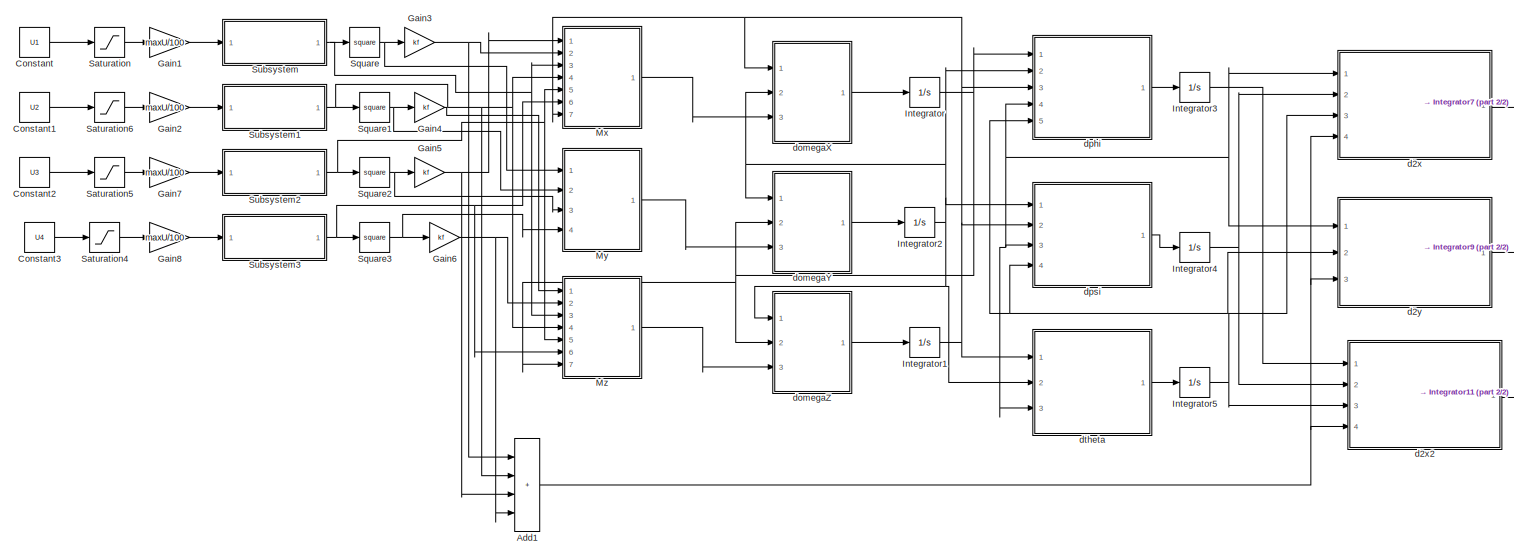
[diagram: root canvas - part 1/2, most of the canvas]
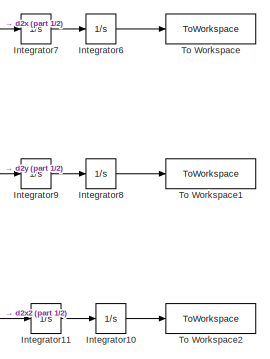
[diagram: root canvas - part 2/2, middle right region]
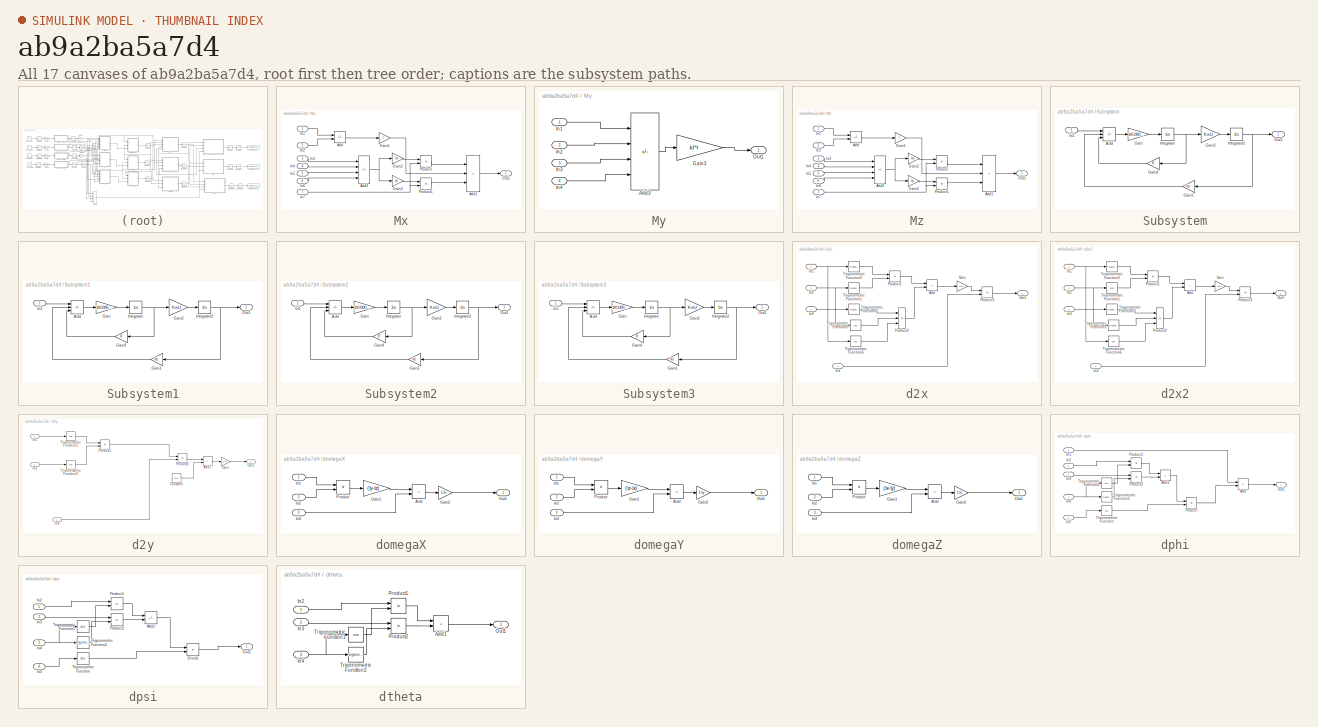
[diagram: thumbnail index - all 17 canvases of the model, root first then tree order]
MODEL slx_ab9a2ba5a7d4
KIND model
CONFIG AbsTol = auto
CONFIG EnableMultiTasking = off
CONFIG FixedStep = auto
CONFIG MaxStep = auto
CONFIG MinStep = auto
CONFIG RelTol = 1e-3
CONFIG SampleTimeConstraint = Unconstrained
CONFIG SolverName = VariableStepAuto
CONFIG StartTime = 0.0
CONFIG StopTime = 5
BLOCK [Sum] Add1
  IconShape = rectangular
  Inputs = ++++
  Ports = [4, 1]
BLOCK [Constant] Constant
  Value = U1
BLOCK [Constant] Constant1
  Value = U2
BLOCK [Constant] Constant2
  Value = U3
BLOCK [Constant] Constant3
  Value = U4
BLOCK [Gain] Gain1
  Gain = maxU/100
BLOCK [Gain] Gain2
  Gain = maxU/100
BLOCK [Gain] Gain3
  Gain = kf
BLOCK [Gain] Gain4
  Gain = kf
BLOCK [Gain] Gain5
  Gain = kf
BLOCK [Gain] Gain6
  Gain = kf
BLOCK [Gain] Gain7
  Gain = maxU/100
BLOCK [Gain] Gain8
  Gain = maxU/100
BLOCK [Integrator] Integrator
  Ports = [1, 1]
BLOCK [Integrator] Integrator1
  Ports = [1, 1]
BLOCK [Integrator] Integrator10
  Ports = [1, 1]
BLOCK [Integrator] Integrator11
  Ports = [1, 1]
BLOCK [Integrator] Integrator2
  Ports = [1, 1]
BLOCK [Integrator] Integrator3
  Ports = [1, 1]
BLOCK [Integrator] Integrator4
  Ports = [1, 1]
BLOCK [Integrator] Integrator5
  Ports = [1, 1]
BLOCK [Integrator] Integrator6
  Ports = [1, 1]
BLOCK [Integrator] Integrator7
  Ports = [1, 1]
BLOCK [Integrator] Integrator8
  Ports = [1, 1]
BLOCK [Integrator] Integrator9
  Ports = [1, 1]
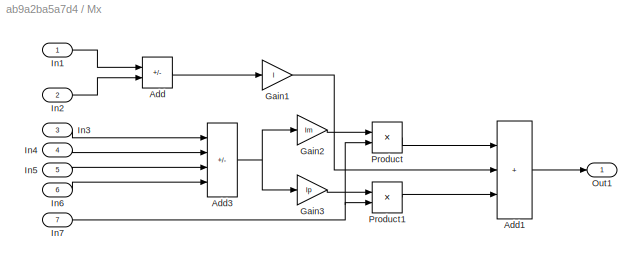
BLOCK [SubSystem] Mx
  Ports = [7, 1]
  RequestExecContextInheritance = off
BLOCK [Sum] Mx/Add
  IconShape = rectangular
  Inputs = +-
  Ports = [2, 1]
BLOCK [Sum] Mx/Add1
  IconShape = rectangular
  Inputs = +++
  Ports = [3, 1]
BLOCK [Sum] Mx/Add3
  IconShape = rectangular
  Inputs = +-+-
  Ports = [4, 1]
BLOCK [Gain] Mx/Gain1
  Gain = l
BLOCK [Gain] Mx/Gain2
  Gain = Im
BLOCK [Gain] Mx/Gain3
  Gain = Ip
BLOCK [Inport] Mx/In1
BLOCK [Inport] Mx/In2
  Port = 2
BLOCK [Inport] Mx/In3
  Port = 3
BLOCK [Inport] Mx/In4
  Port = 4
BLOCK [Inport] Mx/In5
  Port = 5
BLOCK [Inport] Mx/In6
  Port = 6
BLOCK [Inport] Mx/In7
  Port = 7
BLOCK [Outport] Mx/Out1
BLOCK [Product] Mx/Product
  Ports = [2, 1]
BLOCK [Product] Mx/Product1
  Ports = [2, 1]
BLOCK [SubSystem] My
  Ports = [4, 1]
  RequestExecContextInheritance = off
BLOCK [Sum] My/Add3
  IconShape = rectangular
  Inputs = -+-+
  Ports = [4, 1]
BLOCK [Gain] My/Gain3
  Gain = kf*r
BLOCK [Inport] My/In1
BLOCK [Inport] My/In2
  Port = 2
BLOCK [Inport] My/In3
  Port = 3
BLOCK [Inport] My/In4
  Port = 4
BLOCK [Outport] My/Out1
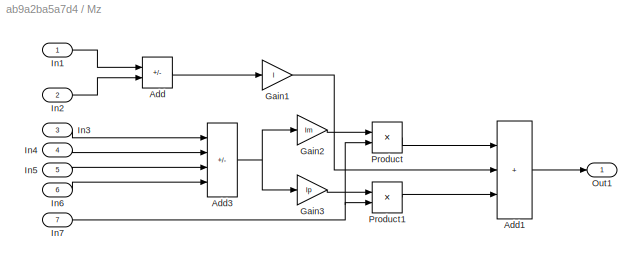
BLOCK [SubSystem] Mz
  Ports = [7, 1]
  RequestExecContextInheritance = off
BLOCK [Sum] Mz/Add
  IconShape = rectangular
  Inputs = +-
  Ports = [2, 1]
BLOCK [Sum] Mz/Add1
  IconShape = rectangular
  Inputs = +++
  Ports = [3, 1]
BLOCK [Sum] Mz/Add3
  IconShape = rectangular
  Inputs = -+-+
  Ports = [4, 1]
BLOCK [Gain] Mz/Gain1
  Gain = l
BLOCK [Gain] Mz/Gain2
  Gain = Im
BLOCK [Gain] Mz/Gain3
  Gain = Ip
BLOCK [Inport] Mz/In1
BLOCK [Inport] Mz/In2
  Port = 2
BLOCK [Inport] Mz/In3
  Port = 3
BLOCK [Inport] Mz/In4
  Port = 4
BLOCK [Inport] Mz/In5
  Port = 5
BLOCK [Inport] Mz/In6
  Port = 6
BLOCK [Inport] Mz/In7
  Port = 7
BLOCK [Outport] Mz/Out1
BLOCK [Product] Mz/Product
  Ports = [2, 1]
BLOCK [Product] Mz/Product1
  Ports = [2, 1]
BLOCK [Saturate] Saturation
  LowerLimit = -100
  UpperLimit = 100
BLOCK [Saturate] Saturation4
  LowerLimit = -100
  UpperLimit = 100
BLOCK [Saturate] Saturation5
  LowerLimit = -100
  UpperLimit = 100
BLOCK [Saturate] Saturation6
  LowerLimit = -100
  UpperLimit = 100
BLOCK [Math] Square
  Operator = square
  Ports = [1, 1]
BLOCK [Math] Square1
  Operator = square
  Ports = [1, 1]
BLOCK [Math] Square2
  Operator = square
  Ports = [1, 1]
BLOCK [Math] Square3
  Operator = square
  Ports = [1, 1]
BLOCK [SubSystem] Subsystem
  Ports = [1, 1]
  RequestExecContextInheritance = off
BLOCK [Sum] Subsystem/Add
  IconShape = rectangular
  Inputs = +--
  Ports = [3, 1]
BLOCK [Gain] Subsystem/Gain
  Gain = 1/0.00047
BLOCK [Gain] Subsystem/Gain1
  Gain = Ke
BLOCK [Gain] Subsystem/Gain2
  Gain = Km/J
BLOCK [Gain] Subsystem/Gain4
  Gain = R
BLOCK [Inport] Subsystem/In1
BLOCK [Integrator] Subsystem/Integrator
  Ports = [1, 1]
BLOCK [Integrator] Subsystem/Integrator2
  Ports = [1, 1]
BLOCK [Outport] Subsystem/Out1
BLOCK [SubSystem] Subsystem1
  Ports = [1, 1]
  RequestExecContextInheritance = off
BLOCK [Sum] Subsystem1/Add
  IconShape = rectangular
  Inputs = +--
  Ports = [3, 1]
BLOCK [Gain] Subsystem1/Gain
  Gain = 1/0.00047
BLOCK [Gain] Subsystem1/Gain1
  Gain = Ke
BLOCK [Gain] Subsystem1/Gain2
  Gain = Km/J
BLOCK [Gain] Subsystem1/Gain4
  Gain = R
BLOCK [Inport] Subsystem1/In1
BLOCK [Integrator] Subsystem1/Integrator
  Ports = [1, 1]
BLOCK [Integrator] Subsystem1/Integrator2
  Ports = [1, 1]
BLOCK [Outport] Subsystem1/Out1
BLOCK [SubSystem] Subsystem2
  Ports = [1, 1]
  RequestExecContextInheritance = off
BLOCK [Sum] Subsystem2/Add
  IconShape = rectangular
  Inputs = +--
  Ports = [3, 1]
BLOCK [Gain] Subsystem2/Gain
  Gain = 1/0.00047
BLOCK [Gain] Subsystem2/Gain1
  Gain = Ke
BLOCK [Gain] Subsystem2/Gain2
  Gain = Km/J
BLOCK [Gain] Subsystem2/Gain4
  Gain = R
BLOCK [Inport] Subsystem2/In1
BLOCK [Integrator] Subsystem2/Integrator
  Ports = [1, 1]
BLOCK [Integrator] Subsystem2/Integrator2
  Ports = [1, 1]
BLOCK [Outport] Subsystem2/Out1
BLOCK [SubSystem] Subsystem3
  Ports = [1, 1]
  RequestExecContextInheritance = off
BLOCK [Sum] Subsystem3/Add
  IconShape = rectangular
  Inputs = +--
  Ports = [3, 1]
BLOCK [Gain] Subsystem3/Gain
  Gain = 1/0.00047
BLOCK [Gain] Subsystem3/Gain1
  Gain = Ke
BLOCK [Gain] Subsystem3/Gain2
  Gain = Km/J
BLOCK [Gain] Subsystem3/Gain4
  Gain = R
BLOCK [Inport] Subsystem3/In1
BLOCK [Integrator] Subsystem3/Integrator
  Ports = [1, 1]
BLOCK [Integrator] Subsystem3/Integrator2
  Ports = [1, 1]
BLOCK [Outport] Subsystem3/Out1
BLOCK [ToWorkspace] To Workspace
  FixptAsFi = on
  MaxDataPoints = inf
  Ports = [1]
  SampleTime = -1
  SaveFormat = Timeseries
  VariableName = x
BLOCK [ToWorkspace] To Workspace1
  FixptAsFi = on
  MaxDataPoints = inf
  Ports = [1]
  SampleTime = -1
  SaveFormat = Timeseries
  VariableName = y
BLOCK [ToWorkspace] To Workspace2
  FixptAsFi = on
  MaxDataPoints = inf
  Ports = [1]
  SampleTime = -1
  SaveFormat = Timeseries
  VariableName = z
BLOCK [SubSystem] d2x
  Ports = [4, 1]
  RequestExecContextInheritance = off
BLOCK [Sum] d2x/Add
  IconShape = rectangular
  Inputs = +-
  Ports = [2, 1]
BLOCK [Gain] d2x/Gain
  Gain = 1/m
BLOCK [Inport] d2x/In1
BLOCK [Inport] d2x/In2
  Port = 2
BLOCK [Inport] d2x/In3
  Port = 3
BLOCK [Inport] d2x/In4
  Port = 4
BLOCK [Outport] d2x/Out1
BLOCK [Product] d2x/Product1
  Ports = [2, 1]
BLOCK [Product] d2x/Product2
  Inputs = 3
  Ports = [3, 1]
BLOCK [Product] d2x/Product3
  Ports = [2, 1]
BLOCK [Trigonometry] d2x/Trigonometric Function1
  Ports = [1, 1]
BLOCK [Trigonometry] d2x/Trigonometric Function2
  Ports = [1, 1]
BLOCK [Trigonometry] d2x/Trigonometric Function3
  Ports = [1, 1]
BLOCK [Trigonometry] d2x/Trigonometric Function5
  Operator = cos
  Ports = [1, 1]
BLOCK [Trigonometry] d2x/Trigonometric Function6
  Operator = cos
  Ports = [1, 1]
BLOCK [SubSystem] d2x2
  Ports = [4, 1]
  RequestExecContextInheritance = off
BLOCK [Sum] d2x2/Add
  IconShape = rectangular
  Ports = [2, 1]
BLOCK [Gain] d2x2/Gain
  Gain = 1/m
BLOCK [Inport] d2x2/In1
BLOCK [Inport] d2x2/In2
  Port = 2
BLOCK [Inport] d2x2/In3
  Port = 3
BLOCK [Inport] d2x2/In4
  Port = 4
BLOCK [Outport] d2x2/Out1
BLOCK [Product] d2x2/Product1
  Ports = [2, 1]
BLOCK [Product] d2x2/Product2
  Inputs = 3
  Ports = [3, 1]
BLOCK [Product] d2x2/Product3
  Ports = [2, 1]
BLOCK [Trigonometry] d2x2/Trigonometric Function1
  Operator = cos
  Ports = [1, 1]
BLOCK [Trigonometry] d2x2/Trigonometric Function2
  Ports = [1, 1]
BLOCK [Trigonometry] d2x2/Trigonometric Function3
  Ports = [1, 1]
BLOCK [Trigonometry] d2x2/Trigonometric Function5
  Ports = [1, 1]
BLOCK [Trigonometry] d2x2/Trigonometric Function6
  Operator = cos
  Ports = [1, 1]
BLOCK [SubSystem] d2y
  Ports = [3, 1]
  RequestExecContextInheritance = off
BLOCK [Sum] d2y/Add1
  IconShape = rectangular
  Inputs = +-
  Ports = [2, 1]
BLOCK [Constant] d2y/Constant
  Value = m*g
BLOCK [Gain] d2y/Gain
  Gain = 1/m
BLOCK [Inport] d2y/In1
BLOCK [Inport] d2y/In3
  Port = 2
BLOCK [Inport] d2y/In4
  Port = 3
BLOCK [Outport] d2y/Out1
BLOCK [Product] d2y/Product1
  Ports = [2, 1]
BLOCK [Product] d2y/Product3
  Ports = [2, 1]
BLOCK [Trigonometry] d2y/Trigonometric Function2
  Operator = cos
  Ports = [1, 1]
BLOCK [Trigonometry] d2y/Trigonometric Function3
  Operator = cos
  Ports = [1, 1]
BLOCK [SubSystem] domegaX
  Ports = [3, 1]
  RequestExecContextInheritance = off
BLOCK [Sum] domegaX/Add
  IconShape = rectangular
  Ports = [2, 1]
BLOCK [Gain] domegaX/Gain1
  Gain = (Iy-Iz)
BLOCK [Gain] domegaX/Gain2
  Gain = 1/Ix
BLOCK [Inport] domegaX/In1
BLOCK [Inport] domegaX/In2
  Port = 2
BLOCK [Inport] domegaX/In3
  Port = 3
BLOCK [Outport] domegaX/Out1
BLOCK [Product] domegaX/Product
  Ports = [2, 1]
BLOCK [SubSystem] domegaY
  Ports = [3, 1]
  RequestExecContextInheritance = off
BLOCK [Sum] domegaY/Add
  IconShape = rectangular
  Ports = [2, 1]
BLOCK [Gain] domegaY/Gain1
  Gain = (Iz-Ix)
BLOCK [Gain] domegaY/Gain2
  Gain = 1/Iy
BLOCK [Inport] domegaY/In1
BLOCK [Inport] domegaY/In2
  Port = 2
BLOCK [Inport] domegaY/In3
  Port = 3
BLOCK [Outport] domegaY/Out1
BLOCK [Product] domegaY/Product
  Ports = [2, 1]
BLOCK [SubSystem] domegaZ
  Ports = [3, 1]
  RequestExecContextInheritance = off
BLOCK [Sum] domegaZ/Add
  IconShape = rectangular
  Ports = [2, 1]
BLOCK [Gain] domegaZ/Gain1
  Gain = (Ix-Iy)
BLOCK [Gain] domegaZ/Gain2
  Gain = 1/Iz
BLOCK [Inport] domegaZ/In1
BLOCK [Inport] domegaZ/In2
  Port = 2
BLOCK [Inport] domegaZ/In3
  Port = 3
BLOCK [Outport] domegaZ/Out1
BLOCK [Product] domegaZ/Product
  Ports = [2, 1]
BLOCK [SubSystem] dphi
  Ports = [5, 1]
  RequestExecContextInheritance = off
BLOCK [Sum] dphi/Add
  IconShape = rectangular
  Inputs = +-
  Ports = [2, 1]
BLOCK [Sum] dphi/Add1
  IconShape = rectangular
  Inputs = +-
  Ports = [2, 1]
BLOCK [Inport] dphi/In1
BLOCK [Inport] dphi/In2
  Port = 2
BLOCK [Inport] dphi/In3
  Port = 3
BLOCK [Inport] dphi/In4
  Port = 4
BLOCK [Inport] dphi/In5
  Port = 5
BLOCK [Outport] dphi/Out1
BLOCK [Product] dphi/Product
  Ports = [2, 1]
BLOCK [Product] dphi/Product1
  Ports = [2, 1]
BLOCK [Product] dphi/Product2
  Ports = [2, 1]
BLOCK [Trigonometry] dphi/Trigonometric Function
  Operator = tan
  Ports = [1, 1]
BLOCK [Trigonometry] dphi/Trigonometric Function1
  Operator = cos
  Ports = [1, 1]
BLOCK [Trigonometry] dphi/Trigonometric Function2
  Ports = [1, 1]
BLOCK [SubSystem] dpsi
  Ports = [4, 1]
  RequestExecContextInheritance = off
BLOCK [Sum] dpsi/Add1
  IconShape = rectangular
  Inputs = +-
  Ports = [2, 1]
BLOCK [Product] dpsi/Divide
  Inputs = */
  Ports = [2, 1]
BLOCK [Inport] dpsi/In2
BLOCK [Inport] dpsi/In3
  Port = 2
BLOCK [Inport] dpsi/In4
  Port = 3
BLOCK [Inport] dpsi/In5
  Port = 4
BLOCK [Outport] dpsi/Out1
BLOCK [Product] dpsi/Product1
  Ports = [2, 1]
BLOCK [Product] dpsi/Product2
  Ports = [2, 1]
BLOCK [Trigonometry] dpsi/Trigonometric Function
  Operator = cos
  Ports = [1, 1]
BLOCK [Trigonometry] dpsi/Trigonometric Function1
  Operator = cos
  Ports = [1, 1]
BLOCK [Trigonometry] dpsi/Trigonometric Function2
  Ports = [1, 1]
BLOCK [SubSystem] dtheta
  Ports = [3, 1]
  RequestExecContextInheritance = off
BLOCK [Sum] dtheta/Add1
  IconShape = rectangular
  Ports = [2, 1]
BLOCK [Inport] dtheta/In2
BLOCK [Inport] dtheta/In3
  Port = 2
BLOCK [Inport] dtheta/In4
  Port = 3
BLOCK [Outport] dtheta/Out1
BLOCK [Product] dtheta/Product1
  Ports = [2, 1]
BLOCK [Product] dtheta/Product2
  Ports = [2, 1]
BLOCK [Trigonometry] dtheta/Trigonometric Function1
  Operator = cos
  Ports = [1, 1]
BLOCK [Trigonometry] dtheta/Trigonometric Function2
  Ports = [1, 1]
NET Add1:1 -> d2x2:4, d2x:4, d2y:3
LINE Constant1:1 -> Saturation6:1
LINE Constant2:1 -> Saturation5:1
LINE Constant3:1 -> Saturation4:1
LINE Constant:1 -> Saturation:1
LINE Gain1:1 -> Subsystem:1
LINE Gain2:1 -> Subsystem1:1
NET Gain3:1 -> Add1:1, Mx:2
LINE Gain4:1 -> Mz:1
NET Gain5:1 -> Add1:3, Mx:1
NET Gain6:1 -> Add1:4, Mz:2
LINE Gain7:1 -> Subsystem2:1
LINE Gain8:1 -> Subsystem3:1
LINE Integrator10:1 -> To Workspace2:1
LINE Integrator11:1 -> Integrator10:1
NET Integrator1:1 -> Mx:7, domegaX:1, dphi:3, dpsi:2, dtheta:1
NET Integrator2:1 -> domegaX:2, domegaY:1, domegaZ:1, dphi:2, dpsi:1, dtheta:2
NET Integrator3:1 -> d2x2:1, d2x:1, d2y:1, dphi:4, dpsi:3, dtheta:3
NET Integrator4:1 -> d2x2:2, d2x:2
NET Integrator5:1 -> d2x2:3, d2x:3, d2y:2, dphi:5, dpsi:4
LINE Integrator6:1 -> To Workspace:1
LINE Integrator7:1 -> Integrator6:1
LINE Integrator8:1 -> To Workspace1:1
LINE Integrator9:1 -> Integrator8:1
NET Integrator:1 -> Mz:7, domegaY:2, domegaZ:2, dphi:1
LINE Mx/Add1:1 -> Mx/Out1:1
NET Mx/Add3:1 -> Mx/Gain2:1, Mx/Gain3:1
LINE Mx/Add:1 -> Mx/Gain1:1
LINE Mx/Gain1:1 -> Mx/Add1:2
LINE Mx/Gain2:1 -> Mx/Product:1
LINE Mx/Gain3:1 -> Mx/Product1:1
LINE Mx/In1:1 -> Mx/Add:1
LINE Mx/In2:1 -> Mx/Add:2
LINE Mx/In3:1 -> Mx/Add3:1
LINE Mx/In4:1 -> Mx/Add3:2
LINE Mx/In5:1 -> Mx/Add3:3
LINE Mx/In6:1 -> Mx/Add3:4
NET Mx/In7:1 -> Mx/Product1:2, Mx/Product:2
LINE Mx/Product1:1 -> Mx/Add1:3
LINE Mx/Product:1 -> Mx/Add1:1
LINE Mx:1 -> domegaX:3
LINE My/Add3:1 -> My/Gain3:1
LINE My/Gain3:1 -> My/Out1:1
LINE My/In1:1 -> My/Add3:1
LINE My/In2:1 -> My/Add3:2
LINE My/In3:1 -> My/Add3:3
LINE My/In4:1 -> My/Add3:4
LINE My:1 -> domegaY:3
LINE Mz/Add1:1 -> Mz/Out1:1
NET Mz/Add3:1 -> Mz/Gain2:1, Mz/Gain3:1
LINE Mz/Add:1 -> Mz/Gain1:1
LINE Mz/Gain1:1 -> Mz/Add1:2
LINE Mz/Gain2:1 -> Mz/Product:1
LINE Mz/Gain3:1 -> Mz/Product1:1
LINE Mz/In1:1 -> Mz/Add:1
LINE Mz/In2:1 -> Mz/Add:2
LINE Mz/In3:1 -> Mz/Add3:1
LINE Mz/In4:1 -> Mz/Add3:2
LINE Mz/In5:1 -> Mz/Add3:3
LINE Mz/In6:1 -> Mz/Add3:4
NET Mz/In7:1 -> Mz/Product1:2, Mz/Product:2
LINE Mz/Product1:1 -> Mz/Add1:3
LINE Mz/Product:1 -> Mz/Add1:1
LINE Mz:1 -> domegaZ:3
LINE Saturation4:1 -> Gain8:1
LINE Saturation5:1 -> Gain7:1
LINE Saturation6:1 -> Gain2:1
LINE Saturation:1 -> Gain1:1
NET Square1:1 -> Gain4:1, My:2
NET Square2:1 -> Gain5:1, My:3
NET Square3:1 -> Gain6:1, My:4
NET Square:1 -> Gain3:1, My:1
LINE Subsystem/Add:1 -> Subsystem/Gain:1
LINE Subsystem/Gain1:1 -> Subsystem/Add:2
LINE Subsystem/Gain2:1 -> Subsystem/Integrator2:1
LINE Subsystem/Gain4:1 -> Subsystem/Add:3
LINE Subsystem/Gain:1 -> Subsystem/Integrator:1
LINE Subsystem/In1:1 -> Subsystem/Add:1
NET Subsystem/Integrator2:1 -> Subsystem/Gain1:1, Subsystem/Out1:1
NET Subsystem/Integrator:1 -> Subsystem/Gain2:1, Subsystem/Gain4:1
LINE Subsystem1/Add:1 -> Subsystem1/Gain:1
LINE Subsystem1/Gain1:1 -> Subsystem1/Add:2
LINE Subsystem1/Gain2:1 -> Subsystem1/Integrator2:1
LINE Subsystem1/Gain4:1 -> Subsystem1/Add:3
LINE Subsystem1/Gain:1 -> Subsystem1/Integrator:1
LINE Subsystem1/In1:1 -> Subsystem1/Add:1
NET Subsystem1/Integrator2:1 -> Subsystem1/Gain1:1, Subsystem1/Out1:1
NET Subsystem1/Integrator:1 -> Subsystem1/Gain2:1, Subsystem1/Gain4:1
NET Subsystem1:1 -> Add1:2, Mx:4, Mz:4, Square1:1
LINE Subsystem2/Add:1 -> Subsystem2/Gain:1
LINE Subsystem2/Gain1:1 -> Subsystem2/Add:2
LINE Subsystem2/Gain2:1 -> Subsystem2/Integrator2:1
LINE Subsystem2/Gain4:1 -> Subsystem2/Add:3
LINE Subsystem2/Gain:1 -> Subsystem2/Integrator:1
LINE Subsystem2/In1:1 -> Subsystem2/Add:1
NET Subsystem2/Integrator2:1 -> Subsystem2/Gain1:1, Subsystem2/Out1:1
NET Subsystem2/Integrator:1 -> Subsystem2/Gain2:1, Subsystem2/Gain4:1
NET Subsystem2:1 -> Mx:5, Mz:5, Square2:1
LINE Subsystem3/Add:1 -> Subsystem3/Gain:1
LINE Subsystem3/Gain1:1 -> Subsystem3/Add:2
LINE Subsystem3/Gain2:1 -> Subsystem3/Integrator2:1
LINE Subsystem3/Gain4:1 -> Subsystem3/Add:3
LINE Subsystem3/Gain:1 -> Subsystem3/Integrator:1
LINE Subsystem3/In1:1 -> Subsystem3/Add:1
NET Subsystem3/Integrator2:1 -> Subsystem3/Gain1:1, Subsystem3/Out1:1
NET Subsystem3/Integrator:1 -> Subsystem3/Gain2:1, Subsystem3/Gain4:1
NET Subsystem3:1 -> Mx:6, Mz:6, Square3:1
NET Subsystem:1 -> Mx:3, Mz:3, Square:1
LINE d2x/Add:1 -> d2x/Gain:1
LINE d2x/Gain:1 -> d2x/Product3:1
NET d2x/In1:1 -> d2x/Trigonometric Function2:1, d2x/Trigonometric Function6:1
NET d2x/In2:1 -> d2x/Trigonometric Function1:1, d2x/Trigonometric Function5:1
LINE d2x/In3:1 -> d2x/Trigonometric Function3:1
LINE d2x/In4:1 -> d2x/Product3:2
LINE d2x/Product1:1 -> d2x/Add:1
LINE d2x/Product2:1 -> d2x/Add:2
LINE d2x/Product3:1 -> d2x/Out1:1
LINE d2x/Trigonometric Function1:1 -> d2x/Product1:2
LINE d2x/Trigonometric Function2:1 -> d2x/Product1:1
LINE d2x/Trigonometric Function3:1 -> d2x/Product2:1
LINE d2x/Trigonometric Function5:1 -> d2x/Product2:2
LINE d2x/Trigonometric Function6:1 -> d2x/Product2:3
LINE d2x2/Add:1 -> d2x2/Gain:1
LINE d2x2/Gain:1 -> d2x2/Product3:1
NET d2x2/In1:1 -> d2x2/Trigonometric Function2:1, d2x2/Trigonometric Function6:1
NET d2x2/In2:1 -> d2x2/Trigonometric Function1:1, d2x2/Trigonometric Function5:1
LINE d2x2/In3:1 -> d2x2/Trigonometric Function3:1
LINE d2x2/In4:1 -> d2x2/Product3:2
LINE d2x2/Product1:1 -> d2x2/Add:1
LINE d2x2/Product2:1 -> d2x2/Add:2
LINE d2x2/Product3:1 -> d2x2/Out1:1
LINE d2x2/Trigonometric Function1:1 -> d2x2/Product1:2
LINE d2x2/Trigonometric Function2:1 -> d2x2/Product1:1
LINE d2x2/Trigonometric Function3:1 -> d2x2/Product2:1
LINE d2x2/Trigonometric Function5:1 -> d2x2/Product2:2
LINE d2x2/Trigonometric Function6:1 -> d2x2/Product2:3
LINE d2x2:1 -> Integrator11:1
LINE d2x:1 -> Integrator7:1
LINE d2y/Add1:1 -> d2y/Gain:1
LINE d2y/Constant:1 -> d2y/Add1:2
LINE d2y/Gain:1 -> d2y/Out1:1
LINE d2y/In1:1 -> d2y/Trigonometric Function2:1
LINE d2y/In3:1 -> d2y/Trigonometric Function3:1
LINE d2y/In4:1 -> d2y/Product3:2
LINE d2y/Product1:1 -> d2y/Product3:1
LINE d2y/Product3:1 -> d2y/Add1:1
LINE d2y/Trigonometric Function2:1 -> d2y/Product1:1
LINE d2y/Trigonometric Function3:1 -> d2y/Product1:2
LINE d2y:1 -> Integrator9:1
LINE domegaX/Add:1 -> domegaX/Gain2:1
LINE domegaX/Gain1:1 -> domegaX/Add:1
LINE domegaX/Gain2:1 -> domegaX/Out1:1
LINE domegaX/In1:1 -> domegaX/Product:1
LINE domegaX/In2:1 -> domegaX/Product:2
LINE domegaX/In3:1 -> domegaX/Add:2
LINE domegaX/Product:1 -> domegaX/Gain1:1
LINE domegaX:1 -> Integrator:1
LINE domegaY/Add:1 -> domegaY/Gain2:1
LINE domegaY/Gain1:1 -> domegaY/Add:1
LINE domegaY/Gain2:1 -> domegaY/Out1:1
LINE domegaY/In1:1 -> domegaY/Product:1
LINE domegaY/In2:1 -> domegaY/Product:2
LINE domegaY/In3:1 -> domegaY/Add:2
LINE domegaY/Product:1 -> domegaY/Gain1:1
LINE domegaY:1 -> Integrator2:1
LINE domegaZ/Add:1 -> domegaZ/Gain2:1
LINE domegaZ/Gain1:1 -> domegaZ/Add:1
LINE domegaZ/Gain2:1 -> domegaZ/Out1:1
LINE domegaZ/In1:1 -> domegaZ/Product:1
LINE domegaZ/In2:1 -> domegaZ/Product:2
LINE domegaZ/In3:1 -> domegaZ/Add:2
LINE domegaZ/Product:1 -> domegaZ/Gain1:1
LINE domegaZ:1 -> Integrator1:1
LINE dphi/Add1:1 -> dphi/Product:1
LINE dphi/Add:1 -> dphi/Out1:1
LINE dphi/In1:1 -> dphi/Add:1
LINE dphi/In2:1 -> dphi/Product1:1
LINE dphi/In3:1 -> dphi/Product2:1
NET dphi/In4:1 -> dphi/Trigonometric Function1:1, dphi/Trigonometric Function2:1
LINE dphi/In5:1 -> dphi/Trigonometric Function:1
LINE dphi/Product1:1 -> dphi/Add1:1
LINE dphi/Product2:1 -> dphi/Add1:2
LINE dphi/Product:1 -> dphi/Add:2
LINE dphi/Trigonometric Function1:1 -> dphi/Product1:2
LINE dphi/Trigonometric Function2:1 -> dphi/Product2:2
LINE dphi/Trigonometric Function:1 -> dphi/Product:2
LINE dphi:1 -> Integrator3:1
LINE dpsi/Add1:1 -> dpsi/Divide:1
LINE dpsi/Divide:1 -> dpsi/Out1:1
LINE dpsi/In2:1 -> dpsi/Product1:1
LINE dpsi/In3:1 -> dpsi/Product2:1
NET dpsi/In4:1 -> dpsi/Trigonometric Function1:1, dpsi/Trigonometric Function2:1
LINE dpsi/In5:1 -> dpsi/Trigonometric Function:1
LINE dpsi/Product1:1 -> dpsi/Add1:1
LINE dpsi/Product2:1 -> dpsi/Add1:2
LINE dpsi/Trigonometric Function1:1 -> dpsi/Product1:2
LINE dpsi/Trigonometric Function2:1 -> dpsi/Product2:2
LINE dpsi/Trigonometric Function:1 -> dpsi/Divide:2
LINE dpsi:1 -> Integrator4:1
LINE dtheta/Add1:1 -> dtheta/Out1:1
LINE dtheta/In2:1 -> dtheta/Product1:1
LINE dtheta/In3:1 -> dtheta/Product2:1
NET dtheta/In4:1 -> dtheta/Trigonometric Function1:1, dtheta/Trigonometric Function2:1
LINE dtheta/Product1:1 -> dtheta/Add1:1
LINE dtheta/Product2:1 -> dtheta/Add1:2
LINE dtheta/Trigonometric Function1:1 -> dtheta/Product1:2
LINE dtheta/Trigonometric Function2:1 -> dtheta/Product2:2
LINE dtheta:1 -> Integrator5:1
note: NET lines group one-source signal fan-out (src -> all destinations, sorted); 1:1 wires keep LINE
